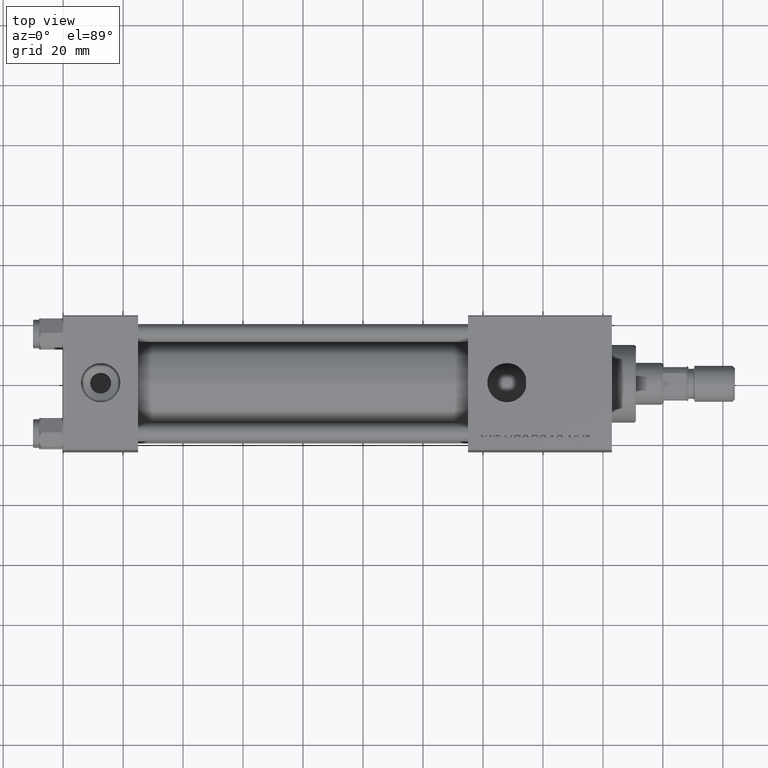
[diagram: clean part render]
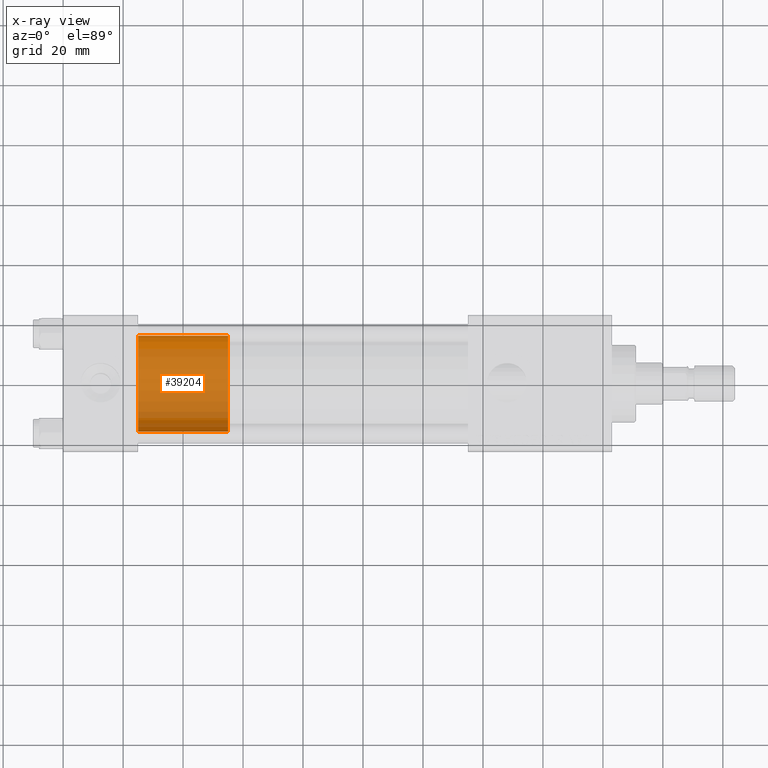
[diagram: x-ray — body ghosted, one internal face saturated and labeled with its STEP entity id]
A machine part, top view, then the same camera in x-ray: the body is ghosted and one INTERNAL B-rep face — a face not visible from any outside direction — is saturated and labeled: STEP entity #39204.
In plain terms, the highlighted cylindrical surface (partial cylindrical patch) has radius 16 mm, axis along (-1, 0, 0).
Its self-contained STEP definition (entity closure, byte-faithful):
#480 = CARTESIAN_POINT ( 'NONE',  ( 16.00000000000000000, 1.959434878635765131E-15, 0.000000000000000000 ) ) ;
#680 = CIRCLE ( 'NONE', #24538, 16.00000000000000000 ) ;
#828 = ORIENTED_EDGE ( 'NONE', *, *, #51821, .F. ) ;
#3541 = AXIS2_PLACEMENT_3D ( 'NONE', #18540, #10247, #6520 ) ;
#4193 = ORIENTED_EDGE ( 'NONE', *, *, #29516, .F. ) ;
#6520 = DIRECTION ( 'NONE',  ( 1.000000000000000000, 0.000000000000000000, 0.000000000000000000 ) ) ;
#8139 = AXIS2_PLACEMENT_3D ( 'NONE', #32525, #52822, #11687 ) ;
#10115 = ORIENTED_EDGE ( 'NONE', *, *, #12592, .T. ) ;
#10247 = DIRECTION ( 'NONE',  ( 0.000000000000000000, 0.000000000000000000, 1.000000000000000000 ) ) ;
#11687 = DIRECTION ( 'NONE',  ( -1.000000000000000000, 0.000000000000000000, 0.000000000000000000 ) ) ;
#12592 = EDGE_CURVE ( 'NONE', #15715, #45832, #16868, .T. ) ;
#15715 = VERTEX_POINT ( 'NONE', #27093 ) ;
#15755 = DIRECTION ( 'NONE',  ( 0.000000000000000000, 0.000000000000000000, 1.000000000000000000 ) ) ;
#16868 = LINE ( 'NONE', #49474, #24308 ) ;
#17183 = EDGE_CURVE ( 'NONE', #45832, #27912, #680, .T. ) ;
#17864 = DIRECTION ( 'NONE',  ( -0.000000000000000000, -0.000000000000000000, -1.000000000000000000 ) ) ;
#18540 = CARTESIAN_POINT ( 'NONE',  ( 0.000000000000000000, 0.000000000000000000, 30.00000000000000000 ) ) ;
#21596 = CARTESIAN_POINT ( 'NONE',  ( -16.00000000000000000, 0.000000000000000000, 0.000000000000000000 ) ) ;
#24308 = VECTOR ( 'NONE', #41460, 1000.000000000000000 ) ;
#24512 = EDGE_LOOP ( 'NONE', ( #4193, #10115, #41700, #828 ) ) ;
#24538 = AXIS2_PLACEMENT_3D ( 'NONE', #31258, #15755, #47550 ) ;
#27093 = CARTESIAN_POINT ( 'NONE',  ( 16.00000000000000000, 1.959434878635765131E-15, 30.00000000000000000 ) ) ;
#27912 = VERTEX_POINT ( 'NONE', #21596 ) ;
#29516 = EDGE_CURVE ( 'NONE', #15715, #49141, #39334, .T. ) ;
#29899 = LINE ( 'NONE', #38178, #30126 ) ;
#30126 = VECTOR ( 'NONE', #17864, 1000.000000000000000 ) ;
#31258 = CARTESIAN_POINT ( 'NONE',  ( 0.000000000000000000, 0.000000000000000000, 0.000000000000000000 ) ) ;
#32525 = CARTESIAN_POINT ( 'NONE',  ( 0.000000000000000000, 0.000000000000000000, 30.00000000000000000 ) ) ;
#38178 = CARTESIAN_POINT ( 'NONE',  ( -16.00000000000000000, 0.000000000000000000, 30.00000000000000000 ) ) ;
#39204 = ADVANCED_FACE ( 'NONE', ( #48299 ), #44286, .T. ) ;
#39334 = CIRCLE ( 'NONE', #3541, 16.00000000000000000 ) ;
#41460 = DIRECTION ( 'NONE',  ( -0.000000000000000000, -0.000000000000000000, -1.000000000000000000 ) ) ;
#41700 = ORIENTED_EDGE ( 'NONE', *, *, #17183, .T. ) ;
#44286 = CYLINDRICAL_SURFACE ( 'NONE', #8139, 16.00000000000000000 ) ;
#45832 = VERTEX_POINT ( 'NONE', #480 ) ;
#47550 = DIRECTION ( 'NONE',  ( 1.000000000000000000, 0.000000000000000000, 0.000000000000000000 ) ) ;
#48299 = FACE_OUTER_BOUND ( 'NONE', #24512, .T. ) ;
#49141 = VERTEX_POINT ( 'NONE', #50221 ) ;
#49474 = CARTESIAN_POINT ( 'NONE',  ( 16.00000000000000000, 1.959434878635765131E-15, 30.00000000000000000 ) ) ;
#50221 = CARTESIAN_POINT ( 'NONE',  ( -16.00000000000000000, 0.000000000000000000, 30.00000000000000000 ) ) ;
#51821 = EDGE_CURVE ( 'NONE', #49141, #27912, #29899, .T. ) ;
#52822 = DIRECTION ( 'NONE',  ( -0.000000000000000000, -0.000000000000000000, -1.000000000000000000 ) ) ;